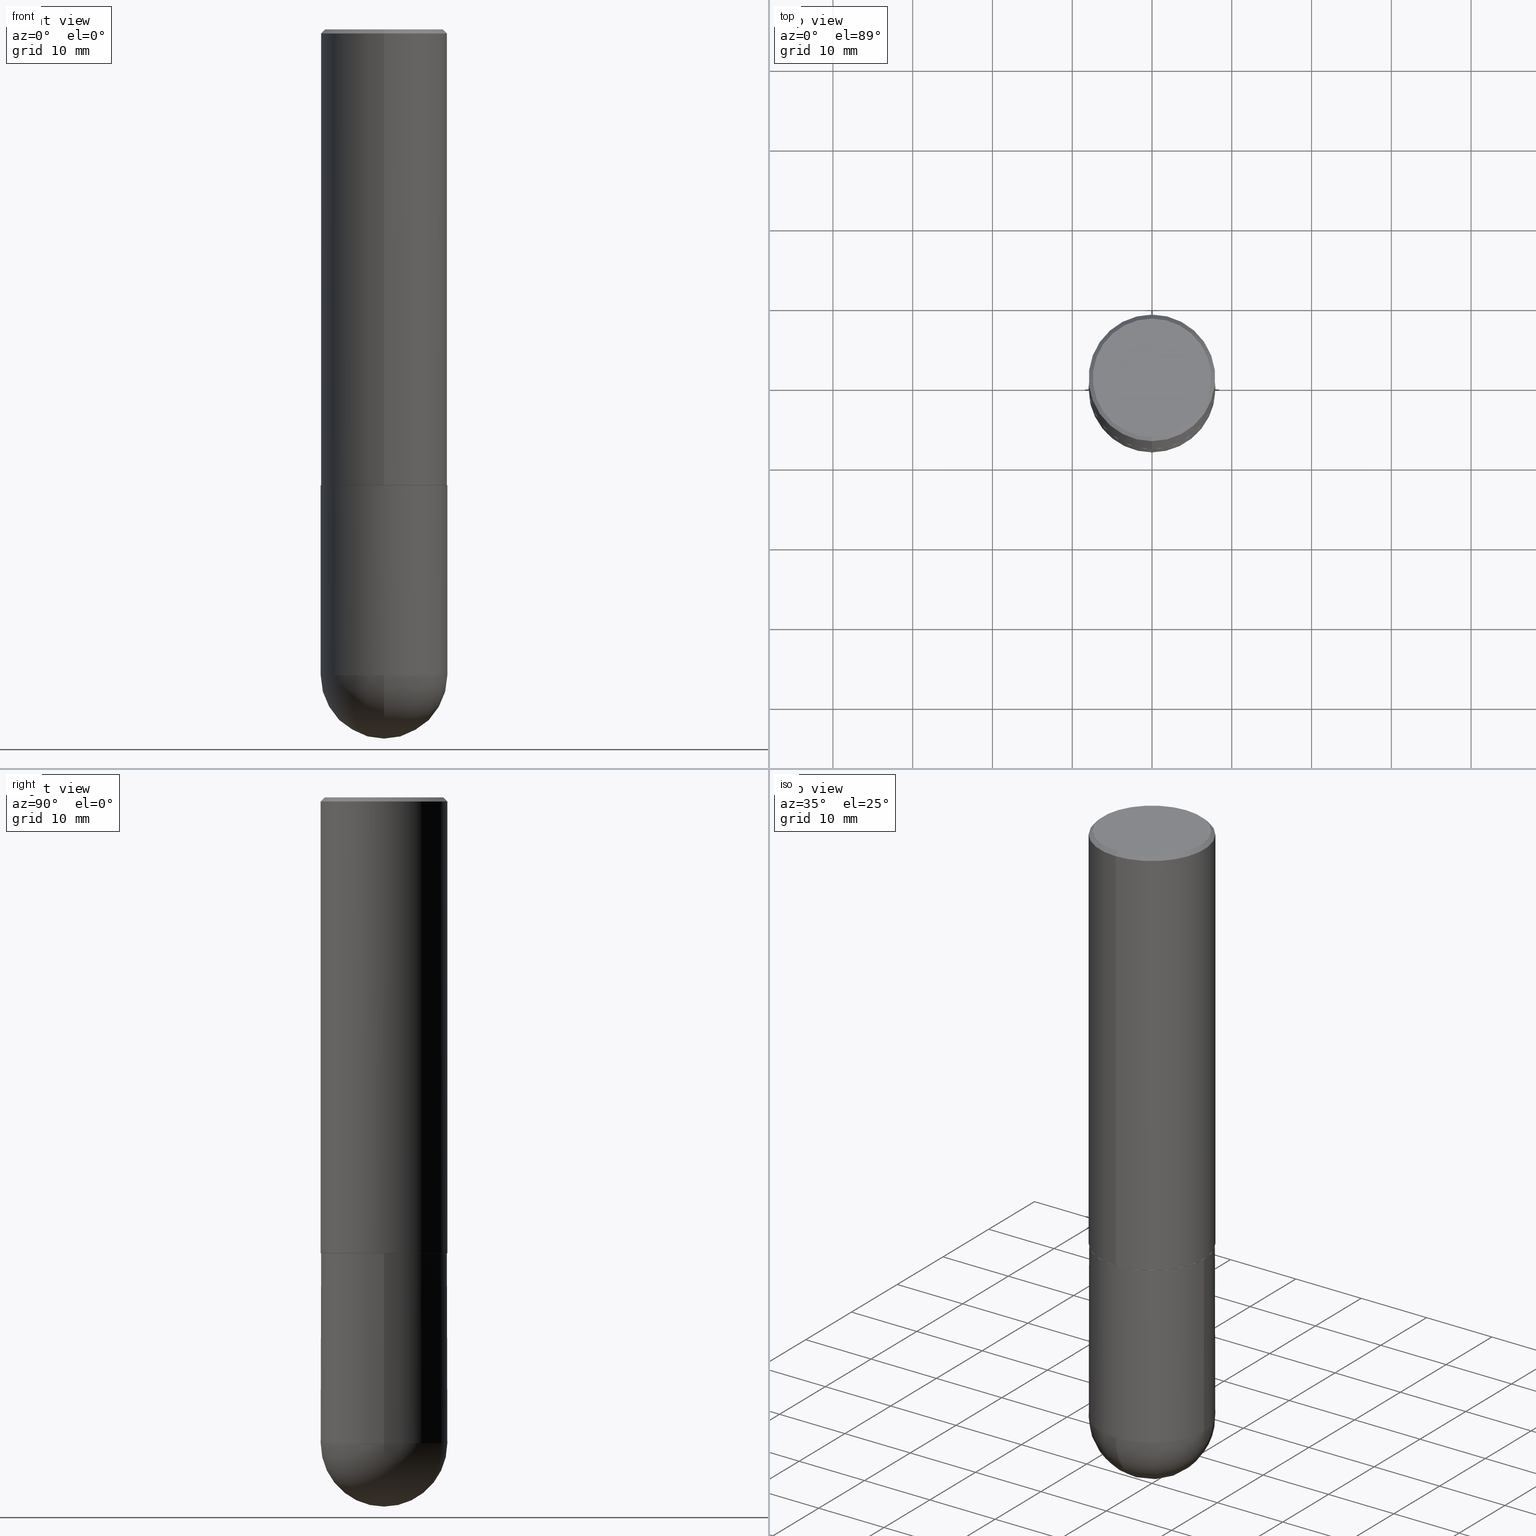
[diagram: canonical four-view strip — front | top / right | iso, engineering-drawing reading convention]
A machine part, canonical four-view strip (front | top / right | iso — engineering-drawing reading convention). The complete STEP part file that produces these views, byte-faithful:
ISO-10303-21;
HEADER;
FILE_DESCRIPTION (( 'STEP AP203' ),
    '1' );
FILE_NAME ('30386.STEP',
    '2024-02-21T16:38:10',
    ( '' ),
    ( '' ),
    'SwSTEP 2.0',
    'SolidWorks 2023',
    '' );
FILE_SCHEMA (( 'CONFIG_CONTROL_DESIGN' ));
ENDSEC;

DATA;
#1 = DIRECTION ( 'NONE',  ( -2.444541361576187486E-29, 3.492809492310029420E-15, 1.000000000000000000 ) ) ;
#2 = COORDINATED_UNIVERSAL_TIME_OFFSET ( 5, 0, .BEHIND. ) ;
#3 = AXIS2_PLACEMENT_3D ( 'NONE', #334, #279, #278 ) ;
#4 = PERSON_AND_ORGANIZATION ( #157, #229 ) ;
#5 = EDGE_CURVE ( 'NONE', #220, #245, #201, .T. ) ;
#6 = SECURITY_CLASSIFICATION_LEVEL ( 'unclassified' ) ;
#7 = PERSON_AND_ORGANIZATION ( #157, #229 ) ;
#8 = AXIS2_PLACEMENT_3D ( 'NONE', #186, #156, #217 ) ;
#9 = DIRECTION ( 'NONE',  ( -2.444541361576187486E-29, 3.492809492310029420E-15, 1.000000000000000000 ) ) ;
#10 = DIRECTION ( 'NONE',  ( -6.982962677686265922E-15, -1.000000000000000000, 3.507991003100177457E-15 ) ) ;
#11 = CARTESIAN_POINT ( 'NONE',  ( 5.500218063546421002E-29, -7.858821357697564222E-15, -2.249999999999999556 ) ) ;
#12 = ADVANCED_FACE ( 'NONE', ( #159 ), #365, .T. ) ;
#13 = AXIS2_PLACEMENT_3D ( 'NONE', #42, #79, #372 ) ;
#14 = VERTEX_POINT ( 'NONE', #302 ) ;
#15 = PLANE ( 'NONE',  #370 ) ;
#16 = DIRECTION ( 'NONE',  ( -2.444541361576187486E-29, 3.492809492310029420E-15, 1.000000000000000000 ) ) ;
#17 = ADVANCED_FACE ( 'NONE', ( #169 ), #76, .T. ) ;
#18 = DIRECTION ( 'NONE',  ( -7.105427357601000281E-15, -1.000000000000000000, 0.000000000000000000 ) ) ;
#19 = AXIS2_PLACEMENT_3D ( 'NONE', #389, #358, #67 ) ;
#20 = CIRCLE ( 'NONE', #192, 0.3114999999999999991 ) ;
#21 = ORIENTED_EDGE ( 'NONE', *, *, #132, .T. ) ;
#22 = DIRECTION ( 'NONE',  ( 2.444541361576187486E-29, -3.492809492310029420E-15, -1.000000000000000000 ) ) ;
#23 = CARTESIAN_POINT ( 'NONE',  ( 2.213340621892766504E-15, 0.3114999999999921720, -2.250000000000000444 ) ) ;
#24 = DIRECTION ( 'NONE',  ( -2.444541361576187205E-29, 3.492809492310029420E-15, 1.000000000000000000 ) ) ;
#25 = EDGE_CURVE ( 'NONE', #72, #14, #402, .T. ) ;
#26 = AXIS2_PLACEMENT_3D ( 'NONE', #149, #28, #48 ) ;
#27 = LOCAL_TIME ( 11, 38, 10.00000000000000000, #327 ) ;
#28 = DIRECTION ( 'NONE',  ( -2.444541361576187486E-29, 3.492809492310029420E-15, 1.000000000000000000 ) ) ;
#29 = EDGE_LOOP ( 'NONE', ( #62, #214 ) ) ;
#30 = PRODUCT ( '30386', '30386', '', ( #266 ) ) ;
#31 = APPROVAL_STATUS ( 'not_yet_approved' ) ;
#32 = APPROVAL_STATUS ( 'not_yet_approved' ) ;
#33 = DIRECTION ( 'NONE',  ( 1.000000000000000000, -6.982962677686269077E-15, 0.000000000000000000 ) ) ;
#34 = CARTESIAN_POINT ( 'NONE',  ( 0.000000000000000000, 0.000000000000000000, 0.000000000000000000 ) ) ;
#35 = EDGE_LOOP ( 'NONE', ( #148, #174, #231, #353 ) ) ;
#36 = AXIS2_PLACEMENT_3D ( 'NONE', #200, #167, #300 ) ;
#37 = AXIS2_PLACEMENT_3D ( 'NONE', #188, #22, #282 ) ;
#38 = DIRECTION ( 'NONE',  ( -2.444541361576187205E-29, 3.492809492310029420E-15, 1.000000000000000000 ) ) ;
#39 = EDGE_CURVE ( 'NONE', #53, #326, #348, .T. ) ;
#40 = DIRECTION ( 'NONE',  ( -2.445468806185136877E-29, 3.491481338843145188E-15, 1.000000000000000000 ) ) ;
#41 = VERTEX_POINT ( 'NONE', #234 ) ;
#42 = CARTESIAN_POINT ( 'NONE',  ( 0.000000000000000000, 0.000000000000000000, 0.000000000000000000 ) ) ;
#43 = APPROVAL_PERSON_ORGANIZATION ( #296, #45, #387 ) ;
#44 = LINE ( 'NONE', #180, #388 ) ;
#45 = APPROVAL ( #100, 'UNSPECIFIED' ) ;
#46 = ORIENTED_EDGE ( 'NONE', *, *, #213, .F. ) ;
#47 = CYLINDRICAL_SURFACE ( 'NONE', #222, 0.3125000000000000555 ) ;
#48 = DIRECTION ( 'NONE',  ( -6.982962677686265922E-15, -1.000000000000000000, 3.496765431890253764E-15 ) ) ;
#49 = CARTESIAN_POINT ( 'NONE',  ( 7.794931819715121781E-29, -1.112909676756252622E-14, -3.187500000000000000 ) ) ;
#50 = CARTESIAN_POINT ( 'NONE',  ( 5.500218063546421002E-29, -7.858821357697564222E-15, -2.249999999999999556 ) ) ;
#51 = ADVANCED_FACE ( 'NONE', ( #357 ), #295, .T. ) ;
#52 = DIRECTION ( 'NONE',  ( -2.445468806185136597E-29, 3.491481338843145583E-15, 1.000000000000000000 ) ) ;
#53 = VERTEX_POINT ( 'NONE', #366 ) ;
#54 = CONICAL_SURFACE ( 'NONE', #403, 0.3124999999999998890, 0.7853981633974467247 ) ;
#55 = ORIENTED_EDGE ( 'NONE', *, *, #213, .T. ) ;
#56 = PERSON_AND_ORGANIZATION_ROLE ( 'design_supplier' ) ;
#57 = ORIENTED_EDGE ( 'NONE', *, *, #71, .F. ) ;
#58 = DIRECTION ( 'NONE',  ( -6.982962677686265922E-15, -1.000000000000000000, 3.507991003100177457E-15 ) ) ;
#59 = PERSON_AND_ORGANIZATION_ROLE ( 'creator' ) ;
#60 = EDGE_LOOP ( 'NONE', ( #57, #88, #259, #379 ) ) ;
#61 =( NAMED_UNIT ( * ) SI_UNIT ( $, .STERADIAN. ) SOLID_ANGLE_UNIT ( ) );
#62 = ORIENTED_EDGE ( 'NONE', *, *, #199, .T. ) ;
#63 = CIRCLE ( 'NONE', #309, 0.3125000000000002776 ) ;
#64 = PERSON_AND_ORGANIZATION ( #157, #229 ) ;
#65 = PERSON_AND_ORGANIZATION ( #157, #229 ) ;
#66 = PRODUCT_RELATED_PRODUCT_CATEGORY ( 'detail', '', ( #30 ) ) ;
#67 = DIRECTION ( 'NONE',  ( -6.982962677686266711E-15, -1.000000000000000000, 3.492809492310029814E-15 ) ) ;
#68 = CARTESIAN_POINT ( 'NONE',  ( 2.216893335571567797E-15, 0.3114999999999921720, -2.250000000000000444 ) ) ;
#69 = CIRCLE ( 'NONE', #130, 0.3125000000000000000 ) ;
#70 = CC_DESIGN_APPROVAL ( #331, ( #399 ) ) ;
#71 = EDGE_CURVE ( 'NONE', #150, #94, #78, .T. ) ;
#72 = VERTEX_POINT ( 'NONE', #166 ) ;
#73 = DIRECTION ( 'NONE',  ( -1.000000000000000000, 6.982962677686265922E-15, -4.876176775795935793E-29 ) ) ;
#74 = APPLICATION_CONTEXT ( 'configuration controlled 3d designs of mechanical parts and assemblies' ) ;
#75 = ORIENTED_EDGE ( 'NONE', *, *, #285, .T. ) ;
#76 = CYLINDRICAL_SURFACE ( 'NONE', #103, 0.3125000000000000000 ) ;
#77 = CARTESIAN_POINT ( 'NONE',  ( 7.794931819715121781E-29, -1.112909676756252622E-14, -3.187500000000000000 ) ) ;
#78 = LINE ( 'NONE', #271, #396 ) ;
#79 = DIRECTION ( 'NONE',  ( -2.445468806185136597E-29, 3.491481338843145583E-15, 1.000000000000000000 ) ) ;
#80 = CIRCLE ( 'NONE', #318, 0.3125000000000002776 ) ;
#81 = EDGE_LOOP ( 'NONE', ( #119, #394, #89, #272, #256 ) ) ;
#82 = DIRECTION ( 'NONE',  ( -2.445468806185136597E-29, 3.491481338843145583E-15, 1.000000000000000000 ) ) ;
#83 = CARTESIAN_POINT ( 'NONE',  ( -2.182175836776905099E-15, -0.3125000000000081601, -2.248999999999998334 ) ) ;
#84 =( CONVERSION_BASED_UNIT ( 'INCH', #249 ) LENGTH_UNIT ( ) NAMED_UNIT ( #233 ) );
#85 = CIRCLE ( 'NONE', #299, 0.3124999999999998890 ) ;
#86 = ADVANCED_FACE ( 'NONE', ( #362 ), #241, .T. ) ;
#87 = FACE_OUTER_BOUND ( 'NONE', #35, .T. ) ;
#88 = ORIENTED_EDGE ( 'NONE', *, *, #199, .F. ) ;
#89 = ORIENTED_EDGE ( 'NONE', *, *, #285, .F. ) ;
#90 = DIRECTION ( 'NONE',  ( -1.000000000000000000, 6.982962677686265922E-15, -4.883557194083112901E-29 ) ) ;
#91 = VERTEX_POINT ( 'NONE', #306 ) ;
#92 = VECTOR ( 'NONE', #38, 39.37007874015748143 ) ;
#93 = PERSON_AND_ORGANIZATION ( #157, #229 ) ;
#94 = VERTEX_POINT ( 'NONE', #276 ) ;
#95 = ORIENTED_EDGE ( 'NONE', *, *, #239, .T. ) ;
#96 = VERTEX_POINT ( 'NONE', #341 ) ;
#97 = EDGE_CURVE ( 'NONE', #326, #236, #80, .T. ) ;
#98 = CONICAL_SURFACE ( 'NONE', #351, 0.3114999999999999991, 0.7853981633975507526 ) ;
#99 = CARTESIAN_POINT ( 'NONE',  ( 0.000000000000000000, 0.000000000000000000, 0.000000000000000000 ) ) ;
#100 = APPROVAL_STATUS ( 'not_yet_approved' ) ;
#101 = LINE ( 'NONE', #232, #409 ) ;
#102 = ADVANCED_FACE ( 'NONE', ( #142 ), #212, .F. ) ;
#103 = AXIS2_PLACEMENT_3D ( 'NONE', #99, #227, #332 ) ;
#104 = AXIS2_PLACEMENT_3D ( 'NONE', #320, #1, #58 ) ;
#105 = ORIENTED_EDGE ( 'NONE', *, *, #268, .T. ) ;
#106 = FACE_OUTER_BOUND ( 'NONE', #404, .T. ) ;
#107 = EDGE_LOOP ( 'NONE', ( #260, #324 ) ) ;
#108 = DIRECTION ( 'NONE',  ( -6.982962677686265922E-15, -1.000000000000000000, 3.496765431890253764E-15 ) ) ;
#109 = DIRECTION ( 'NONE',  ( -2.444541361576187486E-29, 3.492809492310029420E-15, 1.000000000000000000 ) ) ;
#110 = CARTESIAN_POINT ( 'NONE',  ( 5.500218063546421002E-29, -7.858821357697564222E-15, -2.249999999999999556 ) ) ;
#111 = LOCAL_TIME ( 11, 38, 10.00000000000000000, #2 ) ;
#112 = ORIENTED_EDGE ( 'NONE', *, *, #97, .T. ) ;
#113 = CARTESIAN_POINT ( 'NONE',  ( 4.889082723152391857E-31, -6.985618984620081667E-17, -0.02000000000000006981 ) ) ;
#114 = CARTESIAN_POINT ( 'NONE',  ( 7.463812041801236655E-29, -1.160327913570257494E-14, -3.187500000000000000 ) ) ;
#115 = EDGE_CURVE ( 'NONE', #209, #53, #20, .T. ) ;
#116 = DIRECTION ( 'NONE',  ( -6.982962677686265133E-15, -1.000000000000000000, 3.496765431890258103E-15 ) ) ;
#117 = DIRECTION ( 'NONE',  ( -2.445468806185136597E-29, 3.491481338843145583E-15, 1.000000000000000000 ) ) ;
#118 = LINE ( 'NONE', #146, #251 ) ;
#119 = ORIENTED_EDGE ( 'NONE', *, *, #147, .T. ) ;
#120 = ADVANCED_FACE ( 'NONE', ( #106 ), #15, .F. ) ;
#121 = DIRECTION ( 'NONE',  ( 5.024295867788576727E-15, 0.7071067811866224018, 0.7071067811864726327 ) ) ;
#122 = APPROVAL_DATE_TIME ( #226, #45 ) ;
#123 = VECTOR ( 'NONE', #134, 39.37007874015748143 ) ;
#124 = CIRCLE ( 'NONE', #397, 0.3125000000000000000 ) ;
#125 = LOCAL_TIME ( 11, 38, 10.00000000000000000, #225 ) ;
#126 = CALENDAR_DATE ( 2024, 21, 2 ) ;
#127 = ORIENTED_EDGE ( 'NONE', *, *, #147, .F. ) ;
#128 = EDGE_CURVE ( 'NONE', #150, #41, #280, .T. ) ;
#129 = DATE_AND_TIME ( #325, #125 ) ;
#130 = AXIS2_PLACEMENT_3D ( 'NONE', #412, #286, #248 ) ;
#131 = APPROVAL_ROLE ( '' ) ;
#132 = EDGE_CURVE ( 'NONE', #91, #336, #329, .T. ) ;
#133 = DIRECTION ( 'NONE',  ( 6.982962677686265922E-15, 1.000000000000000000, -3.492809492310029420E-15 ) ) ;
#134 = DIRECTION ( 'NONE',  ( -4.937700262165053702E-15, -0.7071067811866175168, 0.7071067811864775177 ) ) ;
#135 = CARTESIAN_POINT ( 'NONE',  ( -1.365988867275784291E-45, 1.951752159732064067E-31, 5.587914726036888243E-17 ) ) ;
#136 = MANIFOLD_SOLID_BREP ( 'Body-Move/Copy2[1]', #153 ) ;
#137 = AXIS2_PLACEMENT_3D ( 'NONE', #49, #52, #284 ) ;
#138 = DIRECTION ( 'NONE',  ( 2.438088387897960049E-29, -3.491481338843145188E-15, -1.000000000000000000 ) ) ;
#139 = ORIENTED_EDGE ( 'NONE', *, *, #290, .F. ) ;
#140 = CARTESIAN_POINT ( 'NONE',  ( 5.497773522184843903E-29, -7.855328548205253930E-15, -2.248999999999999222 ) ) ;
#141 = APPROVAL ( #32, 'UNSPECIFIED' ) ;
#142 = FACE_OUTER_BOUND ( 'NONE', #29, .T. ) ;
#143 = ORIENTED_EDGE ( 'NONE', *, *, #386, .T. ) ;
#144 = FACE_OUTER_BOUND ( 'NONE', #60, .T. ) ;
#145 = AXIS2_PLACEMENT_3D ( 'NONE', #205, #305, #133 ) ;
#146 = CARTESIAN_POINT ( 'NONE',  ( 2.220446049250313081E-15, 0.3125000000000000555, -1.091502966346884490E-15 ) ) ;
#147 = EDGE_CURVE ( 'NONE', #245, #72, #124, .T. ) ;
#148 = ORIENTED_EDGE ( 'NONE', *, *, #386, .F. ) ;
#149 = CARTESIAN_POINT ( 'NONE',  ( 5.497773522184843903E-29, -7.855328548205253930E-15, -2.248999999999999222 ) ) ;
#150 = VERTEX_POINT ( 'NONE', #369 ) ;
#151 = DIRECTION ( 'NONE',  ( 1.000000000000000000, -6.982962677686265922E-15, 4.883557194083112340E-29 ) ) ;
#152 = ORIENTED_EDGE ( 'NONE', *, *, #115, .T. ) ;
#153 = CLOSED_SHELL ( 'NONE', ( #179, #86, #262, #120, #17 ) ) ;
#154 = EDGE_LOOP ( 'NONE', ( #112, #335, #204, #46 ) ) ;
#155 = AXIS2_PLACEMENT_3D ( 'NONE', #237, #210, #398 ) ;
#156 = DIRECTION ( 'NONE',  ( -2.444541361576187486E-29, 3.492809492310029420E-15, 1.000000000000000000 ) ) ;
#157 = PERSON ( 'UNSPECIFIED', 'UNSPECIFIED', 'UNSPECIFIED', ('UNSPECIFIED'), ('UNSPECIFIED'), ('UNSPECIFIED') ) ;
#158 = ORIENTED_EDGE ( 'NONE', *, *, #132, .F. ) ;
#159 = FACE_OUTER_BOUND ( 'NONE', #255, .T. ) ;
#160 = APPROVAL_DATE_TIME ( #165, #331 ) ;
#161 = PERSON_AND_ORGANIZATION_ROLE ( 'classification_officer' ) ;
#162 = CC_DESIGN_APPROVAL ( #45, ( #178 ) ) ;
#163 = CALENDAR_DATE ( 2024, 21, 2 ) ;
#164 = ADVANCED_FACE ( 'NONE', ( #337 ), #270, .F. ) ;
#165 = DATE_AND_TIME ( #163, #235 ) ;
#166 = CARTESIAN_POINT ( 'NONE',  ( -0.3125000000000000000, -7.272018840729489255E-15, -3.187500000000000000 ) ) ;
#167 = DIRECTION ( 'NONE',  ( -2.445468806185136597E-29, 3.491481338843145583E-15, 1.000000000000000000 ) ) ;
#168 = AXIS2_PLACEMENT_3D ( 'NONE', #381, #117, #33 ) ;
#169 = FACE_OUTER_BOUND ( 'NONE', #292, .T. ) ;
#170 = SECURITY_CLASSIFICATION ( '', '', #6 ) ;
#171 = DIRECTION ( 'NONE',  ( -2.444541361576187205E-29, 3.492809492310029420E-15, 1.000000000000000000 ) ) ;
#172 = CARTESIAN_POINT ( 'NONE',  ( -2.175192874099216718E-15, -0.3115000000000078817, -2.249999999999998224 ) ) ;
#173 = CYLINDRICAL_SURFACE ( 'NONE', #13, 0.3125000000000000000 ) ;
#174 = ORIENTED_EDGE ( 'NONE', *, *, #354, .T. ) ;
#175 = LINE ( 'NONE', #203, #92 ) ;
#176 = VECTOR ( 'NONE', #121, 39.37007874015748143 ) ;
#177 = CARTESIAN_POINT ( 'NONE',  ( 2.182175836777013173E-15, 0.3124999999999921729, -2.250000000000000444 ) ) ;
#178 = PRODUCT_DEFINITION_FORMATION_WITH_SPECIFIED_SOURCE ( 'ANY', '', #30, .NOT_KNOWN. ) ;
#179 = ADVANCED_FACE ( 'NONE', ( #401 ), #173, .T. ) ;
#180 = CARTESIAN_POINT ( 'NONE',  ( 0.3125000000000000000, -2.182175836776958347E-15, 1.523805242436230075E-29 ) ) ;
#181 = DIRECTION ( 'NONE',  ( -1.000000000000000000, 7.105427357601001070E-15, -4.926315508542082329E-29 ) ) ;
#182 = ADVANCED_FACE ( 'NONE', ( #301 ), #98, .T. ) ;
#183 = CARTESIAN_POINT ( 'NONE',  ( 7.463812041801236655E-29, -1.160327913570257494E-14, -3.187500000000000000 ) ) ;
#184 =( GEOMETRIC_REPRESENTATION_CONTEXT ( 3 ) GLOBAL_UNCERTAINTY_ASSIGNED_CONTEXT ( ( #321 ) ) GLOBAL_UNIT_ASSIGNED_CONTEXT ( ( #84, #347, #61 ) ) REPRESENTATION_CONTEXT ( 'NONE', 'WORKASPACE' ) );
#185 = APPROVAL_PERSON_ORGANIZATION ( #64, #141, #293 ) ;
#186 = CARTESIAN_POINT ( 'NONE',  ( 4.889082723152391857E-31, -6.985618984620081667E-17, -0.02000000000000006981 ) ) ;
#187 = ORIENTED_EDGE ( 'NONE', *, *, #354, .F. ) ;
#188 = CARTESIAN_POINT ( 'NONE',  ( 4.889082723152391857E-31, -6.985618984620081667E-17, -0.02000000000000006981 ) ) ;
#189 = CARTESIAN_POINT ( 'NONE',  ( 2.182175836777035261E-15, 0.3124999999999887867, -3.187500000000000888 ) ) ;
#190 = ORIENTED_EDGE ( 'NONE', *, *, #39, .T. ) ;
#191 = CC_DESIGN_DATE_AND_TIME_ASSIGNMENT ( #129, #355, ( #170 ) ) ;
#192 = AXIS2_PLACEMENT_3D ( 'NONE', #400, #109, #364 ) ;
#193 = APPLICATION_PROTOCOL_DEFINITION ( 'international standard', 'config_control_design', 1994, #283 ) ;
#194 = ORIENTED_EDGE ( 'NONE', *, *, #25, .T. ) ;
#195 = ORIENTED_EDGE ( 'NONE', *, *, #39, .F. ) ;
#196 = EDGE_CURVE ( 'NONE', #220, #336, #44, .T. ) ;
#197 = AXIS2_PLACEMENT_3D ( 'NONE', #183, #151, #221 ) ;
#198 = APPROVAL_DATE_TIME ( #384, #141 ) ;
#199 = EDGE_CURVE ( 'NONE', #41, #150, #263, .T. ) ;
#200 = CARTESIAN_POINT ( 'NONE',  ( 7.794931819715121781E-29, -1.112909676756252622E-14, -3.187500000000000000 ) ) ;
#201 = CIRCLE ( 'NONE', #168, 0.3125000000000000000 ) ;
#202 = CIRCLE ( 'NONE', #360, 0.3114999999999999991 ) ;
#203 = CARTESIAN_POINT ( 'NONE',  ( -2.182175836776958741E-15, -0.3125000000000000555, 1.091502966346884490E-15 ) ) ;
#204 = ORIENTED_EDGE ( 'NONE', *, *, #274, .F. ) ;
#205 = CARTESIAN_POINT ( 'NONE',  ( 2.042516583223231356E-15, 0.2924999999999998157, -9.937072028704986215E-16 ) ) ;
#206 = EDGE_CURVE ( 'NONE', #41, #281, #101, .T. ) ;
#207 = DIRECTION ( 'NONE',  ( -6.982962677686265922E-15, -1.000000000000000000, 3.492809492310029420E-15 ) ) ;
#208 = AXIS2_PLACEMENT_3D ( 'NONE', #114, #90, #215 ) ;
#209 = VERTEX_POINT ( 'NONE', #68 ) ;
#210 = DIRECTION ( 'NONE',  ( -1.000000000000000000, 6.982962677686265922E-15, -4.883557194083112901E-29 ) ) ;
#211 = CC_DESIGN_APPROVAL ( #141, ( #170 ) ) ;
#212 = PLANE ( 'NONE',  #145 ) ;
#213 = EDGE_CURVE ( 'NONE', #326, #94, #175, .T. ) ;
#214 = ORIENTED_EDGE ( 'NONE', *, *, #128, .T. ) ;
#215 = DIRECTION ( 'NONE',  ( 6.982962677686265922E-15, 1.000000000000000000, -3.496765431890253764E-15 ) ) ;
#216 = AXIS2_PLACEMENT_3D ( 'NONE', #110, #171, #207 ) ;
#217 = DIRECTION ( 'NONE',  ( -6.982962677686265133E-15, -1.000000000000000000, 3.496765431890258103E-15 ) ) ;
#218 = ORIENTED_EDGE ( 'NONE', *, *, #344, .F. ) ;
#219 = CC_DESIGN_PERSON_AND_ORGANIZATION_ASSIGNMENT ( #382, #161, ( #170 ) ) ;
#220 = VERTEX_POINT ( 'NONE', #303 ) ;
#221 = DIRECTION ( 'NONE',  ( 6.982962677686265922E-15, 1.000000000000000000, 0.000000000000000000 ) ) ;
#222 = AXIS2_PLACEMENT_3D ( 'NONE', #253, #378, #346 ) ;
#223 = CALENDAR_DATE ( 2024, 21, 2 ) ;
#224 = EDGE_CURVE ( 'NONE', #72, #91, #273, .T. ) ;
#225 = COORDINATED_UNIVERSAL_TIME_OFFSET ( 5, 0, .BEHIND. ) ;
#226 = DATE_AND_TIME ( #126, #111 ) ;
#227 = DIRECTION ( 'NONE',  ( -2.445468806185136597E-29, 3.491481338843145583E-15, 1.000000000000000000 ) ) ;
#228 = VECTOR ( 'NONE', #40, 39.37007874015748143 ) ;
#229 = ORGANIZATION ( 'UNSPECIFIED', 'UNSPECIFIED', '' ) ;
#230 = COORDINATED_UNIVERSAL_TIME_OFFSET ( 5, 0, .BEHIND. ) ;
#231 = ORIENTED_EDGE ( 'NONE', *, *, #5, .F. ) ;
#232 = CARTESIAN_POINT ( 'NONE',  ( 2.182175836776957558E-15, 0.3124999999999998335, -0.02000000000000116268 ) ) ;
#233 = DIMENSIONAL_EXPONENTS ( 1.000000000000000000, 0.000000000000000000, 0.000000000000000000, 0.000000000000000000, 0.000000000000000000, 0.000000000000000000, 0.000000000000000000 ) ;
#234 = CARTESIAN_POINT ( 'NONE',  ( 2.112346210000094654E-15, 0.2924999999999998157, -9.657676292403140755E-16 ) ) ;
#235 = LOCAL_TIME ( 11, 38, 10.00000000000000000, #390 ) ;
#236 = VERTEX_POINT ( 'NONE', #377 ) ;
#237 = CARTESIAN_POINT ( 'NONE',  ( 7.463812041801236655E-29, -1.160327913570257494E-14, -3.187500000000000000 ) ) ;
#238 = ADVANCED_BREP_SHAPE_REPRESENTATION ( '30386', ( #136, #408, #246 ), #184 ) ;
#239 = EDGE_CURVE ( 'NONE', #53, #209, #202, .T. ) ;
#240 = ORIENTED_EDGE ( 'NONE', *, *, #290, .T. ) ;
#241 = SPHERICAL_SURFACE ( 'NONE', #155, 0.3125000000000002776 ) ;
#242 = DIRECTION ( 'NONE',  ( -2.445468806185136597E-29, 3.491481338843145583E-15, 1.000000000000000000 ) ) ;
#243 = CIRCLE ( 'NONE', #137, 0.3125000000000000000 ) ;
#244 = DIRECTION ( 'NONE',  ( 1.000000000000000000, -6.982962677686269077E-15, 0.000000000000000000 ) ) ;
#245 = VERTEX_POINT ( 'NONE', #189 ) ;
#246 = AXIS2_PLACEMENT_3D ( 'NONE', #34, #349, #261 ) ;
#247 = CC_DESIGN_PERSON_AND_ORGANIZATION_ASSIGNMENT ( #4, #56, ( #178 ) ) ;
#248 = DIRECTION ( 'NONE',  ( 1.000000000000000000, -6.982962677686265133E-15, 0.000000000000000000 ) ) ;
#249 = LENGTH_MEASURE_WITH_UNIT ( LENGTH_MEASURE( 0.02539999999999999897 ), #375 );
#250 = SPHERICAL_SURFACE ( 'NONE', #208, 0.3125000000000002776 ) ;
#251 = VECTOR ( 'NONE', #24, 39.37007874015748143 ) ;
#252 = CC_DESIGN_PERSON_AND_ORGANIZATION_ASSIGNMENT ( #65, #291, ( #399 ) ) ;
#253 = CARTESIAN_POINT ( 'NONE',  ( 0.000000000000000000, 0.000000000000000000, 0.000000000000000000 ) ) ;
#254 = ORIENTED_EDGE ( 'NONE', *, *, #206, .F. ) ;
#255 = EDGE_LOOP ( 'NONE', ( #385, #105, #55, #218 ) ) ;
#256 = ORIENTED_EDGE ( 'NONE', *, *, #5, .T. ) ;
#257 = ORIENTED_EDGE ( 'NONE', *, *, #268, .F. ) ;
#258 = FACE_OUTER_BOUND ( 'NONE', #154, .T. ) ;
#259 = ORIENTED_EDGE ( 'NONE', *, *, #206, .T. ) ;
#260 = ORIENTED_EDGE ( 'NONE', *, *, #239, .F. ) ;
#261 = DIRECTION ( 'NONE',  ( 1.000000000000000000, 0.000000000000000000, 0.000000000000000000 ) ) ;
#262 = ADVANCED_FACE ( 'NONE', ( #87 ), #250, .T. ) ;
#263 = CIRCLE ( 'NONE', #383, 0.2924999999999998157 ) ;
#264 = CALENDAR_DATE ( 2024, 21, 2 ) ;
#265 = PERSON_AND_ORGANIZATION ( #157, #229 ) ;
#266 = MECHANICAL_CONTEXT ( 'NONE', #283, 'mechanical' ) ;
#267 = CIRCLE ( 'NONE', #8, 0.3124999999999998890 ) ;
#268 = EDGE_CURVE ( 'NONE', #236, #326, #275, .T. ) ;
#269 = DATE_AND_TIME ( #223, #27 ) ;
#270 = PLANE ( 'NONE',  #216 ) ;
#271 = CARTESIAN_POINT ( 'NONE',  ( -2.143905624303602036E-15, -0.3124999999999999445, -0.01999999999999897693 ) ) ;
#272 = ORIENTED_EDGE ( 'NONE', *, *, #196, .F. ) ;
#273 = LINE ( 'NONE', #395, #228 ) ;
#274 = EDGE_CURVE ( 'NONE', #94, #281, #267, .T. ) ;
#275 = CIRCLE ( 'NONE', #26, 0.3125000000000002776 ) ;
#276 = CARTESIAN_POINT ( 'NONE',  ( -2.143905624303602036E-15, -0.3124999999999999445, -0.01999999999999897693 ) ) ;
#277 = ORIENTED_EDGE ( 'NONE', *, *, #128, .F. ) ;
#278 = DIRECTION ( 'NONE',  ( -6.982962677686265133E-15, -1.000000000000000000, 3.492809492310029420E-15 ) ) ;
#279 = DIRECTION ( 'NONE',  ( -2.444541361576187486E-29, 3.492809492310029420E-15, 1.000000000000000000 ) ) ;
#280 = CIRCLE ( 'NONE', #3, 0.2924999999999998157 ) ;
#281 = VERTEX_POINT ( 'NONE', #343 ) ;
#282 = DIRECTION ( 'NONE',  ( 6.982962677686265133E-15, 1.000000000000000000, -3.496765431890258103E-15 ) ) ;
#283 = APPLICATION_CONTEXT ( 'configuration controlled 3d designs of mechanical parts and assemblies' ) ;
#284 = DIRECTION ( 'NONE',  ( 1.000000000000000000, -6.982962677686269077E-15, 0.000000000000000000 ) ) ;
#285 = EDGE_CURVE ( 'NONE', #336, #91, #69, .T. ) ;
#286 = DIRECTION ( 'NONE',  ( -2.445468806185136597E-29, 3.491481338843145583E-15, 1.000000000000000000 ) ) ;
#287 = APPROVAL_PERSON_ORGANIZATION ( #7, #331, #131 ) ;
#288 = DIRECTION ( 'NONE',  ( 2.444541361576187486E-29, -3.492809492310029420E-15, -1.000000000000000000 ) ) ;
#289 = ORIENTED_EDGE ( 'NONE', *, *, #224, .F. ) ;
#290 = EDGE_CURVE ( 'NONE', #209, #236, #314, .T. ) ;
#291 = PERSON_AND_ORGANIZATION_ROLE ( 'creator' ) ;
#292 = EDGE_LOOP ( 'NONE', ( #289, #194, #371, #338, #158 ) ) ;
#293 = APPROVAL_ROLE ( '' ) ;
#294 = CLOSED_SHELL ( 'NONE', ( #182, #374, #333, #405, #12, #51, #164, #102 ) ) ;
#295 = CONICAL_SURFACE ( 'NONE', #104, 0.3114999999999999991, 0.7853981633975507526 ) ;
#296 = PERSON_AND_ORGANIZATION ( #157, #229 ) ;
#297 = CC_DESIGN_DATE_AND_TIME_ASSIGNMENT ( #269, #352, ( #399 ) ) ;
#298 = APPLICATION_PROTOCOL_DEFINITION ( 'international standard', 'config_control_design', 1994, #74 ) ;
#299 = AXIS2_PLACEMENT_3D ( 'NONE', #113, #410, #116 ) ;
#300 = DIRECTION ( 'NONE',  ( 1.000000000000000000, -6.982962677686269077E-15, 0.000000000000000000 ) ) ;
#301 = FACE_OUTER_BOUND ( 'NONE', #363, .T. ) ;
#302 = CARTESIAN_POINT ( 'NONE',  ( -2.220446049250237350E-15, -0.3125000000000114908, -3.187499999999998668 ) ) ;
#303 = CARTESIAN_POINT ( 'NONE',  ( 0.3125000000000000000, -1.167464072675676226E-14, -3.187500000000000000 ) ) ;
#304 = ORIENTED_EDGE ( 'NONE', *, *, #71, .T. ) ;
#305 = DIRECTION ( 'NONE',  ( 2.444541361576187205E-29, -3.492809492310029420E-15, -1.000000000000000000 ) ) ;
#306 = CARTESIAN_POINT ( 'NONE',  ( -0.3125000000000000000, -7.272018840729487678E-15, -2.249999999999999556 ) ) ;
#307 = DIRECTION ( 'NONE',  ( -2.445468806185136877E-29, 3.491481338843145188E-15, 1.000000000000000000 ) ) ;
#308 = DIRECTION ( 'NONE',  ( -6.982962677686265922E-15, -1.000000000000000000, 3.507991003100177457E-15 ) ) ;
#309 = AXIS2_PLACEMENT_3D ( 'NONE', #373, #181, #18 ) ;
#310 = CC_DESIGN_SECURITY_CLASSIFICATION ( #170, ( #178 ) ) ;
#311 = ORIENTED_EDGE ( 'NONE', *, *, #97, .F. ) ;
#312 = DIRECTION ( 'NONE',  ( 6.982962677686265133E-15, 1.000000000000000000, -3.496765431890258103E-15 ) ) ;
#313 = LOCAL_TIME ( 11, 38, 10.00000000000000000, #230 ) ;
#314 = LINE ( 'NONE', #23, #176 ) ;
#315 = EDGE_CURVE ( 'NONE', #14, #220, #243, .T. ) ;
#316 = DESIGN_CONTEXT ( 'detailed design', #74, 'design' ) ;
#317 = CARTESIAN_POINT ( 'NONE',  ( 0.3125000000000000000, -1.003800884917403364E-14, -2.249999999999999556 ) ) ;
#318 = AXIS2_PLACEMENT_3D ( 'NONE', #140, #16, #108 ) ;
#319 = CC_DESIGN_PERSON_AND_ORGANIZATION_ASSIGNMENT ( #93, #323, ( #30 ) ) ;
#320 = CARTESIAN_POINT ( 'NONE',  ( 5.500218063546421002E-29, -7.858821357697564222E-15, -2.249999999999999556 ) ) ;
#321 = UNCERTAINTY_MEASURE_WITH_UNIT (LENGTH_MEASURE( 1.000000000000000082E-05 ), #84, 'distance_accuracy_value', 'NONE');
#322 = PRODUCT_DEFINITION_SHAPE ( 'NONE', 'NONE',  #399 ) ;
#323 = PERSON_AND_ORGANIZATION_ROLE ( 'design_owner' ) ;
#324 = ORIENTED_EDGE ( 'NONE', *, *, #115, .F. ) ;
#325 = CALENDAR_DATE ( 2024, 21, 2 ) ;
#326 = VERTEX_POINT ( 'NONE', #83 ) ;
#327 = COORDINATED_UNIVERSAL_TIME_OFFSET ( 5, 0, .BEHIND. ) ;
#328 = EDGE_LOOP ( 'NONE', ( #277, #304, #340, #254 ) ) ;
#329 = CIRCLE ( 'NONE', #345, 0.3125000000000000000 ) ;
#330 = SHAPE_DEFINITION_REPRESENTATION ( #322, #238 ) ;
#331 = APPROVAL ( #31, 'UNSPECIFIED' ) ;
#332 = DIRECTION ( 'NONE',  ( 1.000000000000000000, -6.982962677686266711E-15, 4.876176775795936353E-29 ) ) ;
#333 = ADVANCED_FACE ( 'NONE', ( #380 ), #54, .T. ) ;
#334 = CARTESIAN_POINT ( 'NONE',  ( -1.365988867275784291E-45, 1.951752159732064067E-31, 5.587914726036888243E-17 ) ) ;
#335 = ORIENTED_EDGE ( 'NONE', *, *, #367, .T. ) ;
#336 = VERTEX_POINT ( 'NONE', #317 ) ;
#337 = FACE_OUTER_BOUND ( 'NONE', #107, .T. ) ;
#338 = ORIENTED_EDGE ( 'NONE', *, *, #196, .T. ) ;
#339 = CARTESIAN_POINT ( 'NONE',  ( 5.502304813916556222E-29, -7.855833012397075293E-15, -2.249999999999999556 ) ) ;
#340 = ORIENTED_EDGE ( 'NONE', *, *, #274, .T. ) ;
#341 = CARTESIAN_POINT ( 'NONE',  ( 8.241383017002520278E-29, -1.267523194785438148E-14, -3.500000000000000444 ) ) ;
#342 = DIRECTION ( 'NONE',  ( 1.000000000000000000, -6.982962677686265133E-15, 0.000000000000000000 ) ) ;
#343 = CARTESIAN_POINT ( 'NONE',  ( 2.182175836776957558E-15, 0.3124999999999998335, -0.02000000000000116268 ) ) ;
#344 = EDGE_CURVE ( 'NONE', #281, #94, #85, .T. ) ;
#345 = AXIS2_PLACEMENT_3D ( 'NONE', #339, #82, #342 ) ;
#346 = DIRECTION ( 'NONE',  ( -6.982962677686266711E-15, -1.000000000000000000, 3.492809492310029814E-15 ) ) ;
#347 =( NAMED_UNIT ( * ) PLANE_ANGLE_UNIT ( ) SI_UNIT ( $, .RADIAN. ) );
#348 = LINE ( 'NONE', #172, #123 ) ;
#349 = DIRECTION ( 'NONE',  ( 0.000000000000000000, 0.000000000000000000, 1.000000000000000000 ) ) ;
#350 = EDGE_LOOP ( 'NONE', ( #139, #152, #190, #257 ) ) ;
#351 = AXIS2_PLACEMENT_3D ( 'NONE', #11, #9, #10 ) ;
#352 = DATE_TIME_ROLE ( 'creation_date' ) ;
#353 = ORIENTED_EDGE ( 'NONE', *, *, #315, .F. ) ;
#354 = EDGE_CURVE ( 'NONE', #96, #245, #376, .T. ) ;
#355 = DATE_TIME_ROLE ( 'classification_date' ) ;
#356 = CONICAL_SURFACE ( 'NONE', #37, 0.3124999999999998890, 0.7853981633974467247 ) ;
#357 = FACE_OUTER_BOUND ( 'NONE', #350, .T. ) ;
#358 = DIRECTION ( 'NONE',  ( -2.444541361576187486E-29, 3.492809492310029420E-15, 1.000000000000000000 ) ) ;
#359 = DIRECTION ( 'NONE',  ( 4.937700262164540154E-15, 0.7071067811865440200, -0.7071067811865511255 ) ) ;
#360 = AXIS2_PLACEMENT_3D ( 'NONE', #50, #406, #308 ) ;
#361 = DIRECTION ( 'NONE',  ( -2.444541361576187486E-29, 3.492809492310029420E-15, 1.000000000000000000 ) ) ;
#362 = FACE_OUTER_BOUND ( 'NONE', #368, .T. ) ;
#363 = EDGE_LOOP ( 'NONE', ( #95, #240, #311, #195 ) ) ;
#364 = DIRECTION ( 'NONE',  ( -6.982962677686265922E-15, -1.000000000000000000, 3.507991003100177457E-15 ) ) ;
#365 = CYLINDRICAL_SURFACE ( 'NONE', #19, 0.3125000000000000555 ) ;
#366 = CARTESIAN_POINT ( 'NONE',  ( -2.175192874099216718E-15, -0.3115000000000078817, -2.249999999999998224 ) ) ;
#367 = EDGE_CURVE ( 'NONE', #236, #281, #118, .T. ) ;
#368 = EDGE_LOOP ( 'NONE', ( #187, #143, #411, #127 ) ) ;
#369 = CARTESIAN_POINT ( 'NONE',  ( -2.075300644325886704E-15, -0.2924999999999998157, 1.077525923761051865E-15 ) ) ;
#370 = AXIS2_PLACEMENT_3D ( 'NONE', #177, #138, #73 ) ;
#371 = ORIENTED_EDGE ( 'NONE', *, *, #315, .T. ) ;
#372 = DIRECTION ( 'NONE',  ( 1.000000000000000000, -6.982962677686266711E-15, 4.876176775795936353E-29 ) ) ;
#373 = CARTESIAN_POINT ( 'NONE',  ( 7.463812041801236655E-29, -1.160327913570257494E-14, -3.187500000000000000 ) ) ;
#374 = ADVANCED_FACE ( 'NONE', ( #258 ), #47, .T. ) ;
#375 =( LENGTH_UNIT ( ) NAMED_UNIT ( * ) SI_UNIT ( $, .METRE. ) );
#376 = CIRCLE ( 'NONE', #197, 0.3125000000000002776 ) ;
#377 = CARTESIAN_POINT ( 'NONE',  ( 2.220446049250341480E-15, 0.3124999999999924505, -2.249000000000000554 ) ) ;
#378 = DIRECTION ( 'NONE',  ( -2.444541361576187486E-29, 3.492809492310029420E-15, 1.000000000000000000 ) ) ;
#379 = ORIENTED_EDGE ( 'NONE', *, *, #344, .T. ) ;
#380 = FACE_OUTER_BOUND ( 'NONE', #328, .T. ) ;
#381 = CARTESIAN_POINT ( 'NONE',  ( 7.794931819715121781E-29, -1.112909676756252622E-14, -3.187500000000000000 ) ) ;
#382 = PERSON_AND_ORGANIZATION ( #157, #229 ) ;
#383 = AXIS2_PLACEMENT_3D ( 'NONE', #135, #361, #392 ) ;
#384 = DATE_AND_TIME ( #264, #313 ) ;
#385 = ORIENTED_EDGE ( 'NONE', *, *, #367, .F. ) ;
#386 = EDGE_CURVE ( 'NONE', #96, #14, #63, .T. ) ;
#387 = APPROVAL_ROLE ( '' ) ;
#388 = VECTOR ( 'NONE', #307, 39.37007874015748143 ) ;
#389 = CARTESIAN_POINT ( 'NONE',  ( 0.000000000000000000, 0.000000000000000000, 0.000000000000000000 ) ) ;
#390 = COORDINATED_UNIVERSAL_TIME_OFFSET ( 5, 0, .BEHIND. ) ;
#391 = CC_DESIGN_PERSON_AND_ORGANIZATION_ASSIGNMENT ( #265, #59, ( #178 ) ) ;
#392 = DIRECTION ( 'NONE',  ( -6.982962677686265133E-15, -1.000000000000000000, 3.492809492310029420E-15 ) ) ;
#393 = DIRECTION ( 'NONE',  ( -4.851104656540955597E-15, -0.7071067811865487940, -0.7071067811865461294 ) ) ;
#394 = ORIENTED_EDGE ( 'NONE', *, *, #224, .T. ) ;
#395 = CARTESIAN_POINT ( 'NONE',  ( -0.3125000000000000000, 2.220446049250313081E-15, -1.537167215704658232E-29 ) ) ;
#396 = VECTOR ( 'NONE', #393, 39.37007874015748854 ) ;
#397 = AXIS2_PLACEMENT_3D ( 'NONE', #77, #242, #244 ) ;
#398 = DIRECTION ( 'NONE',  ( 6.982962677686265922E-15, 1.000000000000000000, -3.496765431890253764E-15 ) ) ;
#399 = PRODUCT_DEFINITION ( 'UNKNOWN', '', #178, #316 ) ;
#400 = CARTESIAN_POINT ( 'NONE',  ( 5.500218063546421002E-29, -7.858821357697564222E-15, -2.249999999999999556 ) ) ;
#401 = FACE_OUTER_BOUND ( 'NONE', #81, .T. ) ;
#402 = CIRCLE ( 'NONE', #36, 0.3125000000000000000 ) ;
#403 = AXIS2_PLACEMENT_3D ( 'NONE', #407, #288, #312 ) ;
#404 = EDGE_LOOP ( 'NONE', ( #75, #21 ) ) ;
#405 = ADVANCED_FACE ( 'NONE', ( #144 ), #356, .T. ) ;
#406 = DIRECTION ( 'NONE',  ( -2.444541361576187486E-29, 3.492809492310029420E-15, 1.000000000000000000 ) ) ;
#407 = CARTESIAN_POINT ( 'NONE',  ( 4.889082723152391857E-31, -6.985618984620081667E-17, -0.02000000000000006981 ) ) ;
#408 = MANIFOLD_SOLID_BREP ( 'Body-Move/Copy2[2]', #294 ) ;
#409 = VECTOR ( 'NONE', #359, 39.37007874015748143 ) ;
#410 = DIRECTION ( 'NONE',  ( -2.444541361576187486E-29, 3.492809492310029420E-15, 1.000000000000000000 ) ) ;
#411 = ORIENTED_EDGE ( 'NONE', *, *, #25, .F. ) ;
#412 = CARTESIAN_POINT ( 'NONE',  ( 5.502304813916556222E-29, -7.855833012397075293E-15, -2.249999999999999556 ) ) ;
ENDSEC;
END-ISO-10303-21;
